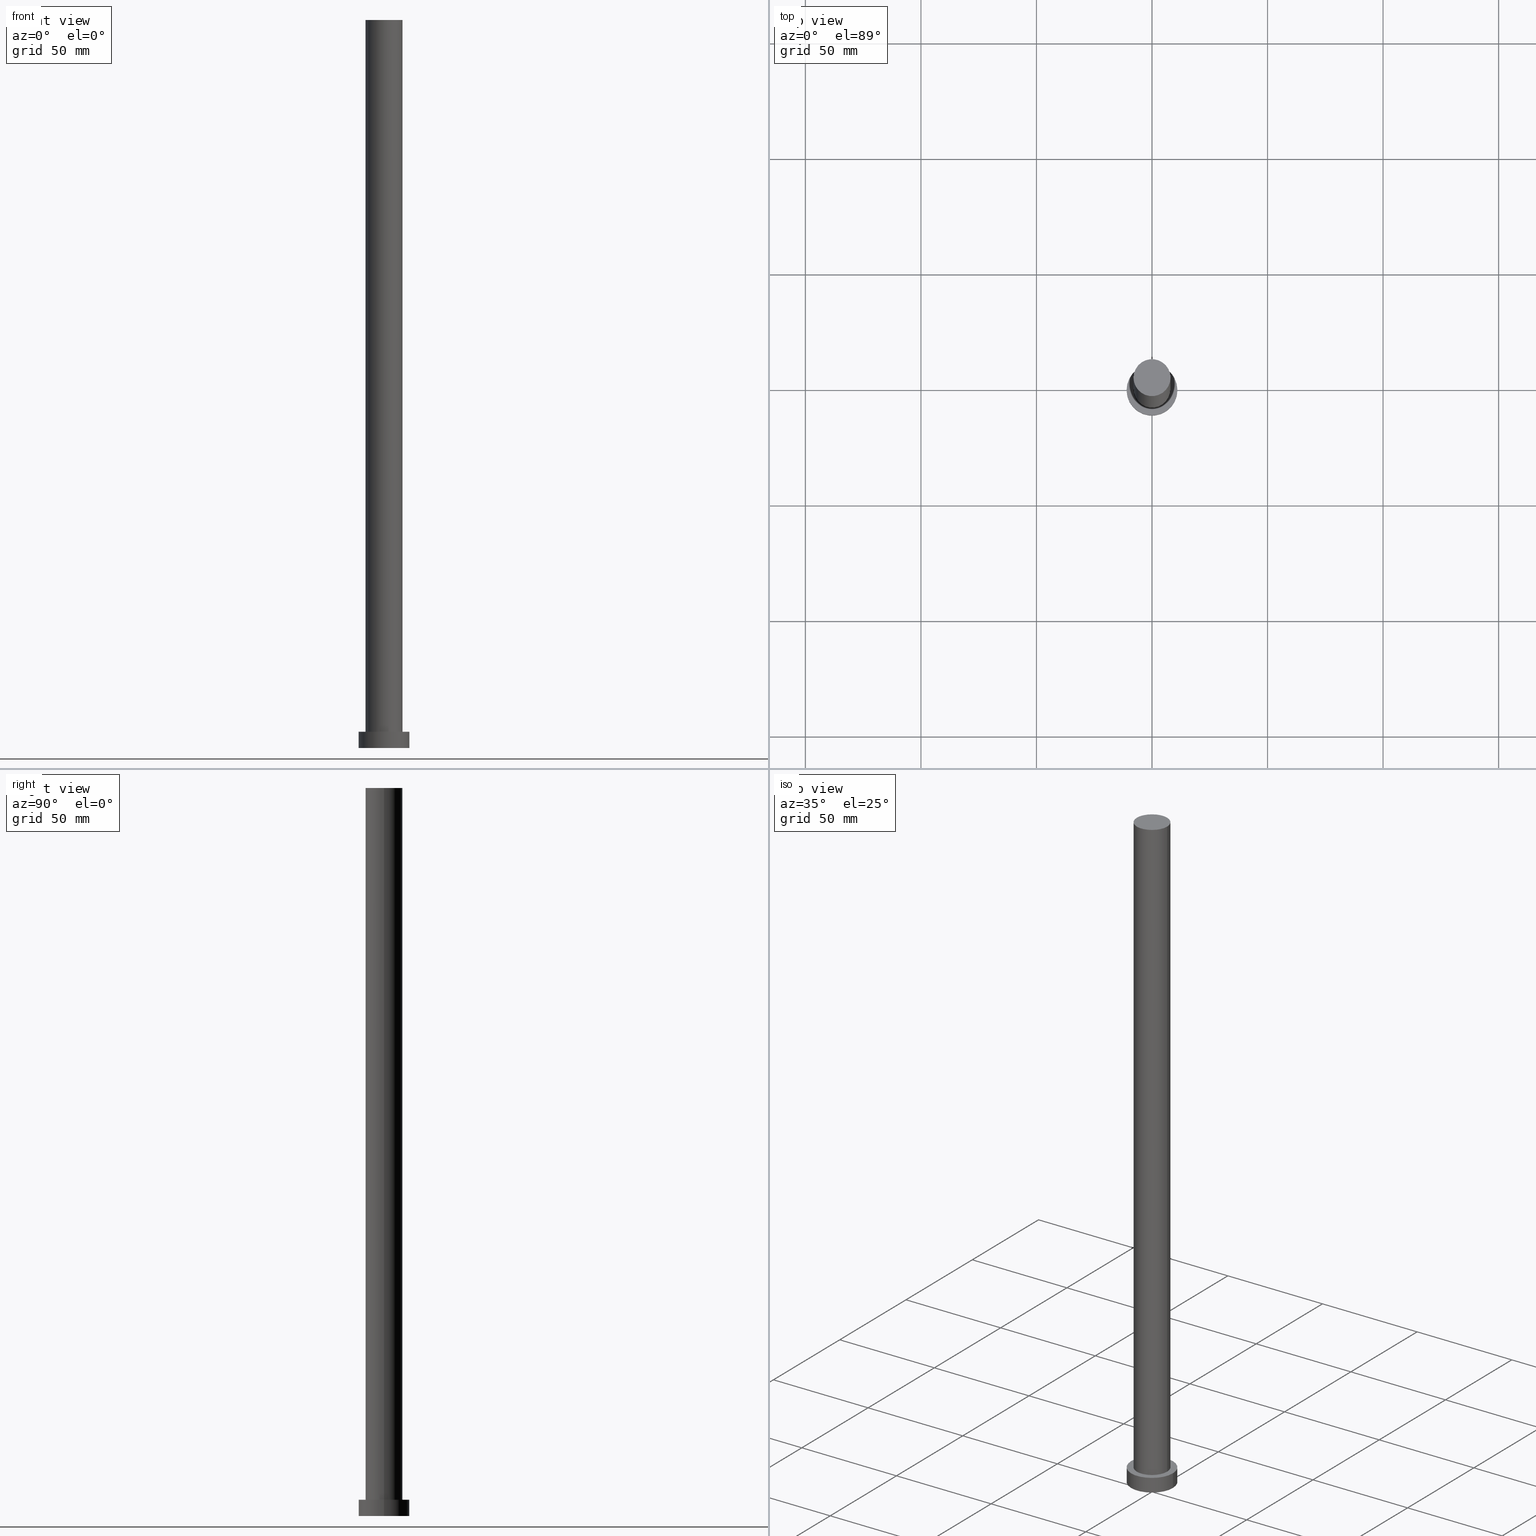
[diagram: canonical four-view strip — front | top / right | iso, engineering-drawing reading convention]
A machine part, canonical four-view strip (front | top / right | iso — engineering-drawing reading convention). The complete STEP part file that produces these views, byte-faithful:
ISO-10303-21;
HEADER;
FILE_DESCRIPTION (( 'STEP AP203' ),
    '1' );
FILE_NAME ('3391.STEP',
    '2023-02-13T08:52:32',
    ( '' ),
    ( '' ),
    'SwSTEP 2.0',
    'SolidWorks 2019',
    '' );
FILE_SCHEMA (( 'CONFIG_CONTROL_DESIGN' ));
ENDSEC;

DATA;
#1 = AXIS2_PLACEMENT_3D ( 'NONE', #9, #65, #7 ) ;
#2 = DIRECTION ( 'NONE',  ( 0.000000000000000000, 0.000000000000000000, 1.000000000000000000 ) ) ;
#3 = EDGE_CURVE ( 'NONE', #241, #58, #8, .T. ) ;
#4 = CALENDAR_DATE ( 2023, 13, 2 ) ;
#5 = ADVANCED_BREP_SHAPE_REPRESENTATION ( '3391', ( #14, #122 ), #135 ) ;
#6 = ORIENTED_EDGE ( 'NONE', *, *, #94, .F. ) ;
#7 = DIRECTION ( 'NONE',  ( 1.000000000000000000, 0.000000000000000000, 0.000000000000000000 ) ) ;
#8 = LINE ( 'NONE', #147, #207 ) ;
#9 = CARTESIAN_POINT ( 'NONE',  ( 0.000000000000000000, 0.000000000000000000, 0.000000000000000000 ) ) ;
#10 = ADVANCED_FACE ( 'NONE', ( #245 ), #59, .T. ) ;
#11 = CARTESIAN_POINT ( 'NONE',  ( 0.000000000000000000, 0.000000000000000000, 0.000000000000000000 ) ) ;
#12 = VECTOR ( 'NONE', #89, 1000.000000000000000 ) ;
#13 = CC_DESIGN_DATE_AND_TIME_ASSIGNMENT ( #218, #44, ( #100 ) ) ;
#14 = MANIFOLD_SOLID_BREP ( 'P�idat vysunut�m3', #210 ) ;
#15 = CC_DESIGN_APPROVAL ( #47, ( #27 ) ) ;
#16 = CARTESIAN_POINT ( 'NONE',  ( 11.00000000000000000, 1.347111479062088405E-15, 7.000000000000000000 ) ) ;
#17 = DIRECTION ( 'NONE',  ( 1.000000000000000000, 0.000000000000000000, 0.000000000000000000 ) ) ;
#18 = FACE_OUTER_BOUND ( 'NONE', #203, .T. ) ;
#19 = DIRECTION ( 'NONE',  ( 0.000000000000000000, 0.000000000000000000, 1.000000000000000000 ) ) ;
#20 = PERSON_AND_ORGANIZATION ( #248, #197 ) ;
#21 = AXIS2_PLACEMENT_3D ( 'NONE', #255, #19, #190 ) ;
#22 = ORIENTED_EDGE ( 'NONE', *, *, #227, .T. ) ;
#23 = DIRECTION ( 'NONE',  ( -0.000000000000000000, -0.000000000000000000, -1.000000000000000000 ) ) ;
#24 = MECHANICAL_CONTEXT ( 'NONE', #103, 'mechanical' ) ;
#25 = DIRECTION ( 'NONE',  ( 0.000000000000000000, 0.000000000000000000, 1.000000000000000000 ) ) ;
#26 = APPROVAL_PERSON_ORGANIZATION ( #20, #138, #201 ) ;
#27 = SECURITY_CLASSIFICATION ( '', '', #109 ) ;
#28 = VERTEX_POINT ( 'NONE', #45 ) ;
#29 = DIRECTION ( 'NONE',  ( -0.000000000000000000, -0.000000000000000000, -1.000000000000000000 ) ) ;
#30 =( NAMED_UNIT ( * ) PLANE_ANGLE_UNIT ( ) SI_UNIT ( $, .RADIAN. ) );
#31 = AXIS2_PLACEMENT_3D ( 'NONE', #156, #192, #17 ) ;
#32 = ADVANCED_FACE ( 'NONE', ( #145 ), #243, .T. ) ;
#33 = LINE ( 'NONE', #157, #131 ) ;
#34 = CIRCLE ( 'NONE', #223, 11.00000000000000000 ) ;
#35 = APPROVAL ( #108, 'NEUR�EN�' ) ;
#36 = DIRECTION ( 'NONE',  ( 1.000000000000000000, 0.000000000000000000, -0.000000000000000000 ) ) ;
#37 = PERSON_AND_ORGANIZATION_ROLE ( 'design_supplier' ) ;
#38 = CARTESIAN_POINT ( 'NONE',  ( 0.000000000000000000, 0.000000000000000000, 315.0000000000000000 ) ) ;
#39 = FACE_OUTER_BOUND ( 'NONE', #141, .T. ) ;
#40 = AXIS2_PLACEMENT_3D ( 'NONE', #91, #92, #229 ) ;
#41 = PERSON_AND_ORGANIZATION ( #248, #197 ) ;
#42 = PRODUCT_DEFINITION_FORMATION_WITH_SPECIFIED_SOURCE ( 'LIBOVOLN�', '', #251, .NOT_KNOWN. ) ;
#43 = EDGE_LOOP ( 'NONE', ( #183, #216 ) ) ;
#44 = DATE_TIME_ROLE ( 'creation_date' ) ;
#45 = CARTESIAN_POINT ( 'NONE',  ( 8.000000000000000000, 9.797174393178825657E-16, 315.0000000000000000 ) ) ;
#46 = ORIENTED_EDGE ( 'NONE', *, *, #214, .F. ) ;
#47 = APPROVAL ( #75, 'NEUR�EN�' ) ;
#48 = LINE ( 'NONE', #200, #53 ) ;
#49 = DIRECTION ( 'NONE',  ( 0.000000000000000000, 0.000000000000000000, 1.000000000000000000 ) ) ;
#50 = CIRCLE ( 'NONE', #244, 11.00000000000000000 ) ;
#51 = CARTESIAN_POINT ( 'NONE',  ( 0.000000000000000000, 0.000000000000000000, 0.000000000000000000 ) ) ;
#52 = EDGE_CURVE ( 'NONE', #168, #241, #50, .T. ) ;
#53 = VECTOR ( 'NONE', #23, 1000.000000000000000 ) ;
#54 = APPROVAL_ROLE ( '' ) ;
#55 = DIRECTION ( 'NONE',  ( -1.000000000000000000, 0.000000000000000000, 0.000000000000000000 ) ) ;
#56 = DIRECTION ( 'NONE',  ( 0.000000000000000000, 0.000000000000000000, 1.000000000000000000 ) ) ;
#57 = PERSON_AND_ORGANIZATION ( #248, #197 ) ;
#58 = VERTEX_POINT ( 'NONE', #165 ) ;
#59 = CYLINDRICAL_SURFACE ( 'NONE', #76, 11.00000000000000000 ) ;
#60 = EDGE_LOOP ( 'NONE', ( #46, #6 ) ) ;
#61 = CARTESIAN_POINT ( 'NONE',  ( 0.000000000000000000, 0.000000000000000000, 7.000000000000000000 ) ) ;
#62 = CC_DESIGN_PERSON_AND_ORGANIZATION_ASSIGNMENT ( #90, #231, ( #42 ) ) ;
#63 = UNCERTAINTY_MEASURE_WITH_UNIT (LENGTH_MEASURE( 1.000000000000000082E-05 ), #225, 'distance_accuracy_value', 'NONE');
#64 = CC_DESIGN_APPROVAL ( #138, ( #100 ) ) ;
#65 = DIRECTION ( 'NONE',  ( 0.000000000000000000, 0.000000000000000000, 1.000000000000000000 ) ) ;
#66 = APPLICATION_CONTEXT ( 'configuration controlled 3d designs of mechanical parts and assemblies' ) ;
#67 = DIRECTION ( 'NONE',  ( -0.000000000000000000, -0.000000000000000000, -1.000000000000000000 ) ) ;
#68 = EDGE_CURVE ( 'NONE', #28, #121, #48, .T. ) ;
#69 = PLANE ( 'NONE',  #170 ) ;
#70 = FACE_OUTER_BOUND ( 'NONE', #167, .T. ) ;
#71 = CIRCLE ( 'NONE', #31, 8.000000000000000000 ) ;
#72 = PERSON_AND_ORGANIZATION ( #248, #197 ) ;
#73 = CARTESIAN_POINT ( 'NONE',  ( -11.00000000000000000, 0.000000000000000000, 7.000000000000000000 ) ) ;
#74 = DIRECTION ( 'NONE',  ( -0.000000000000000000, -0.000000000000000000, -1.000000000000000000 ) ) ;
#75 = APPROVAL_STATUS ( 'not_yet_approved' ) ;
#76 = AXIS2_PLACEMENT_3D ( 'NONE', #61, #205, #184 ) ;
#77 = DATE_TIME_ROLE ( 'classification_date' ) ;
#78 = ORIENTED_EDGE ( 'NONE', *, *, #227, .F. ) ;
#79 = CC_DESIGN_PERSON_AND_ORGANIZATION_ASSIGNMENT ( #41, #116, ( #100 ) ) ;
#80 = ORIENTED_EDGE ( 'NONE', *, *, #3, .T. ) ;
#81 = DIRECTION ( 'NONE',  ( 1.000000000000000000, 0.000000000000000000, 0.000000000000000000 ) ) ;
#82 = AXIS2_PLACEMENT_3D ( 'NONE', #230, #67, #152 ) ;
#83 = CC_DESIGN_DATE_AND_TIME_ASSIGNMENT ( #115, #77, ( #27 ) ) ;
#84 = ORIENTED_EDGE ( 'NONE', *, *, #94, .T. ) ;
#85 = ORIENTED_EDGE ( 'NONE', *, *, #3, .F. ) ;
#86 = ORIENTED_EDGE ( 'NONE', *, *, #68, .F. ) ;
#87 = AXIS2_PLACEMENT_3D ( 'NONE', #38, #175, #55 ) ;
#88 = CC_DESIGN_APPROVAL ( #35, ( #42 ) ) ;
#89 = DIRECTION ( 'NONE',  ( -0.000000000000000000, -0.000000000000000000, -1.000000000000000000 ) ) ;
#90 = PERSON_AND_ORGANIZATION ( #248, #197 ) ;
#91 = CARTESIAN_POINT ( 'NONE',  ( 0.000000000000000000, 0.000000000000000000, 7.000000000000000000 ) ) ;
#92 = DIRECTION ( 'NONE',  ( 0.000000000000000000, 0.000000000000000000, 1.000000000000000000 ) ) ;
#93 = APPLICATION_PROTOCOL_DEFINITION ( 'international standard', 'config_control_design', 1994, #66 ) ;
#94 = EDGE_CURVE ( 'NONE', #121, #163, #111, .T. ) ;
#95 = CIRCLE ( 'NONE', #174, 8.000000000000000000 ) ;
#96 = COORDINATED_UNIVERSAL_TIME_OFFSET ( 1, 0, .AHEAD. ) ;
#97 = ORIENTED_EDGE ( 'NONE', *, *, #52, .T. ) ;
#98 = ORIENTED_EDGE ( 'NONE', *, *, #189, .F. ) ;
#99 = CARTESIAN_POINT ( 'NONE',  ( 0.000000000000000000, 0.000000000000000000, 7.000000000000000000 ) ) ;
#100 = PRODUCT_DEFINITION ( 'NEZN�M�', '', #42, #137 ) ;
#101 = VERTEX_POINT ( 'NONE', #181 ) ;
#102 = PERSON_AND_ORGANIZATION ( #248, #197 ) ;
#103 = APPLICATION_CONTEXT ( 'configuration controlled 3d designs of mechanical parts and assemblies' ) ;
#104 = DIRECTION ( 'NONE',  ( 0.000000000000000000, 0.000000000000000000, 1.000000000000000000 ) ) ;
#105 = CARTESIAN_POINT ( 'NONE',  ( 0.000000000000000000, 0.000000000000000000, 7.000000000000000000 ) ) ;
#106 =( NAMED_UNIT ( * ) SI_UNIT ( $, .STERADIAN. ) SOLID_ANGLE_UNIT ( ) );
#107 = LINE ( 'NONE', #188, #12 ) ;
#108 = APPROVAL_STATUS ( 'not_yet_approved' ) ;
#109 = SECURITY_CLASSIFICATION_LEVEL ( 'unclassified' ) ;
#110 = CARTESIAN_POINT ( 'NONE',  ( 11.00000000000000000, 1.347111479062088405E-15, 0.000000000000000000 ) ) ;
#111 = CIRCLE ( 'NONE', #194, 8.000000000000000000 ) ;
#112 = DATE_AND_TIME ( #195, #250 ) ;
#113 = EDGE_CURVE ( 'NONE', #58, #222, #240, .T. ) ;
#114 = CALENDAR_DATE ( 2023, 13, 2 ) ;
#115 = DATE_AND_TIME ( #4, #206 ) ;
#116 = PERSON_AND_ORGANIZATION_ROLE ( 'creator' ) ;
#117 = ORIENTED_EDGE ( 'NONE', *, *, #127, .F. ) ;
#118 = EDGE_CURVE ( 'NONE', #28, #101, #95, .T. ) ;
#119 = CARTESIAN_POINT ( 'NONE',  ( 0.000000000000000000, 0.000000000000000000, 7.000000000000000000 ) ) ;
#120 = ORIENTED_EDGE ( 'NONE', *, *, #68, .T. ) ;
#121 = VERTEX_POINT ( 'NONE', #173 ) ;
#122 = AXIS2_PLACEMENT_3D ( 'NONE', #11, #49, #126 ) ;
#123 = LOCAL_TIME ( 9, 52, 32.00000000000000000, #211 ) ;
#124 = CC_DESIGN_PERSON_AND_ORGANIZATION_ASSIGNMENT ( #102, #140, ( #251 ) ) ;
#125 = ORIENTED_EDGE ( 'NONE', *, *, #113, .F. ) ;
#126 = DIRECTION ( 'NONE',  ( 1.000000000000000000, 0.000000000000000000, 0.000000000000000000 ) ) ;
#127 = EDGE_CURVE ( 'NONE', #168, #222, #33, .T. ) ;
#128 = DIRECTION ( 'NONE',  ( 0.000000000000000000, 0.000000000000000000, 1.000000000000000000 ) ) ;
#129 = FACE_BOUND ( 'NONE', #60, .T. ) ;
#130 = PERSON_AND_ORGANIZATION_ROLE ( 'classification_officer' ) ;
#131 = VECTOR ( 'NONE', #74, 1000.000000000000000 ) ;
#132 = DIRECTION ( 'NONE',  ( 0.000000000000000000, 0.000000000000000000, 1.000000000000000000 ) ) ;
#133 = PLANE ( 'NONE',  #187 ) ;
#134 = DIRECTION ( 'NONE',  ( 1.000000000000000000, 0.000000000000000000, 0.000000000000000000 ) ) ;
#135 =( GEOMETRIC_REPRESENTATION_CONTEXT ( 3 ) GLOBAL_UNCERTAINTY_ASSIGNED_CONTEXT ( ( #63 ) ) GLOBAL_UNIT_ASSIGNED_CONTEXT ( ( #225, #30, #106 ) ) REPRESENTATION_CONTEXT ( 'NONE', 'WORKASPACE' ) );
#136 = APPROVAL_PERSON_ORGANIZATION ( #196, #47, #160 ) ;
#137 = DESIGN_CONTEXT ( 'detailed design', #66, 'design' ) ;
#138 = APPROVAL ( #143, 'NEUR�EN�' ) ;
#139 = SHAPE_DEFINITION_REPRESENTATION ( #151, #5 ) ;
#140 = PERSON_AND_ORGANIZATION_ROLE ( 'design_owner' ) ;
#141 = EDGE_LOOP ( 'NONE', ( #164, #120, #84, #98 ) ) ;
#142 = ORIENTED_EDGE ( 'NONE', *, *, #246, .F. ) ;
#143 = APPROVAL_STATUS ( 'not_yet_approved' ) ;
#144 = DATE_AND_TIME ( #114, #177 ) ;
#145 = FACE_OUTER_BOUND ( 'NONE', #198, .T. ) ;
#146 = ORIENTED_EDGE ( 'NONE', *, *, #52, .F. ) ;
#147 = CARTESIAN_POINT ( 'NONE',  ( -11.00000000000000000, 0.000000000000000000, 7.000000000000000000 ) ) ;
#148 = ORIENTED_EDGE ( 'NONE', *, *, #189, .T. ) ;
#149 = ADVANCED_FACE ( 'NONE', ( #129, #18 ), #69, .T. ) ;
#150 = AXIS2_PLACEMENT_3D ( 'NONE', #119, #219, #224 ) ;
#151 = PRODUCT_DEFINITION_SHAPE ( 'NONE', 'NONE',  #100 ) ;
#152 = DIRECTION ( 'NONE',  ( -1.000000000000000000, 0.000000000000000000, 0.000000000000000000 ) ) ;
#153 = PLANE ( 'NONE',  #166 ) ;
#154 = CARTESIAN_POINT ( 'NONE',  ( -8.000000000000000000, 0.000000000000000000, 7.000000000000000000 ) ) ;
#155 = LOCAL_TIME ( 9, 52, 32.00000000000000000, #199 ) ;
#156 = CARTESIAN_POINT ( 'NONE',  ( 0.000000000000000000, 0.000000000000000000, 7.000000000000000000 ) ) ;
#157 = CARTESIAN_POINT ( 'NONE',  ( 11.00000000000000000, 1.347111479062088405E-15, 7.000000000000000000 ) ) ;
#158 = DATE_AND_TIME ( #191, #123 ) ;
#159 = DIRECTION ( 'NONE',  ( 1.000000000000000000, 0.000000000000000000, -0.000000000000000000 ) ) ;
#160 = APPROVAL_ROLE ( '' ) ;
#161 = CC_DESIGN_SECURITY_CLASSIFICATION ( #27, ( #42 ) ) ;
#162 = APPROVAL_DATE_TIME ( #144, #138 ) ;
#163 = VERTEX_POINT ( 'NONE', #154 ) ;
#164 = ORIENTED_EDGE ( 'NONE', *, *, #118, .F. ) ;
#165 = CARTESIAN_POINT ( 'NONE',  ( -11.00000000000000000, 0.000000000000000000, 0.000000000000000000 ) ) ;
#166 = AXIS2_PLACEMENT_3D ( 'NONE', #209, #2, #36 ) ;
#167 = EDGE_LOOP ( 'NONE', ( #86, #237, #148, #221 ) ) ;
#168 = VERTEX_POINT ( 'NONE', #16 ) ;
#169 = ADVANCED_FACE ( 'NONE', ( #39 ), #171, .T. ) ;
#170 = AXIS2_PLACEMENT_3D ( 'NONE', #233, #56, #159 ) ;
#171 = CYLINDRICAL_SURFACE ( 'NONE', #82, 8.000000000000000000 ) ;
#172 = ADVANCED_FACE ( 'NONE', ( #228 ), #133, .F. ) ;
#173 = CARTESIAN_POINT ( 'NONE',  ( 8.000000000000000000, 9.797174393178825657E-16, 7.000000000000000000 ) ) ;
#174 = AXIS2_PLACEMENT_3D ( 'NONE', #202, #25, #253 ) ;
#175 = DIRECTION ( 'NONE',  ( -0.000000000000000000, -0.000000000000000000, -1.000000000000000000 ) ) ;
#176 = CC_DESIGN_PERSON_AND_ORGANIZATION_ASSIGNMENT ( #57, #130, ( #27 ) ) ;
#177 = LOCAL_TIME ( 9, 52, 32.00000000000000000, #242 ) ;
#178 = EDGE_LOOP ( 'NONE', ( #125, #142 ) ) ;
#179 = COORDINATED_UNIVERSAL_TIME_OFFSET ( 1, 0, .AHEAD. ) ;
#180 = ORIENTED_EDGE ( 'NONE', *, *, #127, .T. ) ;
#181 = CARTESIAN_POINT ( 'NONE',  ( -8.000000000000000000, 0.000000000000000000, 315.0000000000000000 ) ) ;
#182 = ORIENTED_EDGE ( 'NONE', *, *, #246, .T. ) ;
#183 = ORIENTED_EDGE ( 'NONE', *, *, #213, .T. ) ;
#184 = DIRECTION ( 'NONE',  ( -1.000000000000000000, 0.000000000000000000, 0.000000000000000000 ) ) ;
#185 = DIRECTION ( 'NONE',  ( 1.000000000000000000, 0.000000000000000000, 0.000000000000000000 ) ) ;
#186 = DIRECTION ( 'NONE',  ( 0.000000000000000000, 0.000000000000000000, 1.000000000000000000 ) ) ;
#187 = AXIS2_PLACEMENT_3D ( 'NONE', #51, #128, #208 ) ;
#188 = CARTESIAN_POINT ( 'NONE',  ( -8.000000000000000000, 0.000000000000000000, 315.0000000000000000 ) ) ;
#189 = EDGE_CURVE ( 'NONE', #101, #163, #107, .T. ) ;
#190 = DIRECTION ( 'NONE',  ( 1.000000000000000000, 0.000000000000000000, 0.000000000000000000 ) ) ;
#191 = CALENDAR_DATE ( 2023, 13, 2 ) ;
#192 = DIRECTION ( 'NONE',  ( 0.000000000000000000, 0.000000000000000000, 1.000000000000000000 ) ) ;
#193 = ADVANCED_FACE ( 'NONE', ( #252 ), #153, .T. ) ;
#194 = AXIS2_PLACEMENT_3D ( 'NONE', #99, #104, #185 ) ;
#195 = CALENDAR_DATE ( 2023, 13, 2 ) ;
#196 = PERSON_AND_ORGANIZATION ( #248, #197 ) ;
#197 = ORGANIZATION ( 'NEUR�EN�', 'NEUR�EN�', '' ) ;
#198 = EDGE_LOOP ( 'NONE', ( #117, #78, #80, #238 ) ) ;
#199 = COORDINATED_UNIVERSAL_TIME_OFFSET ( 1, 0, .AHEAD. ) ;
#200 = CARTESIAN_POINT ( 'NONE',  ( 8.000000000000000000, 9.797174393178825657E-16, 315.0000000000000000 ) ) ;
#201 = APPROVAL_ROLE ( '' ) ;
#202 = CARTESIAN_POINT ( 'NONE',  ( 0.000000000000000000, 0.000000000000000000, 315.0000000000000000 ) ) ;
#203 = EDGE_LOOP ( 'NONE', ( #22, #97 ) ) ;
#204 = CIRCLE ( 'NONE', #40, 11.00000000000000000 ) ;
#205 = DIRECTION ( 'NONE',  ( -0.000000000000000000, -0.000000000000000000, -1.000000000000000000 ) ) ;
#206 = LOCAL_TIME ( 9, 52, 32.00000000000000000, #96 ) ;
#207 = VECTOR ( 'NONE', #29, 1000.000000000000000 ) ;
#208 = DIRECTION ( 'NONE',  ( 1.000000000000000000, 0.000000000000000000, -0.000000000000000000 ) ) ;
#209 = CARTESIAN_POINT ( 'NONE',  ( 0.000000000000000000, 0.000000000000000000, 315.0000000000000000 ) ) ;
#210 = CLOSED_SHELL ( 'NONE', ( #169, #10, #32, #149, #172, #239, #193 ) ) ;
#211 = COORDINATED_UNIVERSAL_TIME_OFFSET ( 1, 0, .AHEAD. ) ;
#212 = CYLINDRICAL_SURFACE ( 'NONE', #87, 8.000000000000000000 ) ;
#213 = EDGE_CURVE ( 'NONE', #101, #28, #226, .T. ) ;
#214 = EDGE_CURVE ( 'NONE', #163, #121, #71, .T. ) ;
#215 = EDGE_LOOP ( 'NONE', ( #146, #180, #182, #85 ) ) ;
#216 = ORIENTED_EDGE ( 'NONE', *, *, #118, .T. ) ;
#217 = CALENDAR_DATE ( 2023, 13, 2 ) ;
#218 = DATE_AND_TIME ( #217, #155 ) ;
#219 = DIRECTION ( 'NONE',  ( -0.000000000000000000, -0.000000000000000000, -1.000000000000000000 ) ) ;
#220 = CC_DESIGN_PERSON_AND_ORGANIZATION_ASSIGNMENT ( #234, #37, ( #42 ) ) ;
#221 = ORIENTED_EDGE ( 'NONE', *, *, #214, .T. ) ;
#222 = VERTEX_POINT ( 'NONE', #110 ) ;
#223 = AXIS2_PLACEMENT_3D ( 'NONE', #232, #132, #134 ) ;
#224 = DIRECTION ( 'NONE',  ( -1.000000000000000000, 0.000000000000000000, 0.000000000000000000 ) ) ;
#225 =( LENGTH_UNIT ( ) NAMED_UNIT ( * ) SI_UNIT ( .MILLI., .METRE. ) );
#226 = CIRCLE ( 'NONE', #21, 8.000000000000000000 ) ;
#227 = EDGE_CURVE ( 'NONE', #241, #168, #204, .T. ) ;
#228 = FACE_OUTER_BOUND ( 'NONE', #178, .T. ) ;
#229 = DIRECTION ( 'NONE',  ( 1.000000000000000000, 0.000000000000000000, 0.000000000000000000 ) ) ;
#230 = CARTESIAN_POINT ( 'NONE',  ( 0.000000000000000000, 0.000000000000000000, 315.0000000000000000 ) ) ;
#231 = PERSON_AND_ORGANIZATION_ROLE ( 'creator' ) ;
#232 = CARTESIAN_POINT ( 'NONE',  ( 0.000000000000000000, 0.000000000000000000, 0.000000000000000000 ) ) ;
#233 = CARTESIAN_POINT ( 'NONE',  ( 0.000000000000000000, 0.000000000000000000, 7.000000000000000000 ) ) ;
#234 = PERSON_AND_ORGANIZATION ( #248, #197 ) ;
#235 = APPROVAL_DATE_TIME ( #112, #47 ) ;
#236 = APPROVAL_PERSON_ORGANIZATION ( #72, #35, #54 ) ;
#237 = ORIENTED_EDGE ( 'NONE', *, *, #213, .F. ) ;
#238 = ORIENTED_EDGE ( 'NONE', *, *, #113, .T. ) ;
#239 = ADVANCED_FACE ( 'NONE', ( #70 ), #212, .T. ) ;
#240 = CIRCLE ( 'NONE', #1, 11.00000000000000000 ) ;
#241 = VERTEX_POINT ( 'NONE', #73 ) ;
#242 = COORDINATED_UNIVERSAL_TIME_OFFSET ( 1, 0, .AHEAD. ) ;
#243 = CYLINDRICAL_SURFACE ( 'NONE', #150, 11.00000000000000000 ) ;
#244 = AXIS2_PLACEMENT_3D ( 'NONE', #105, #186, #81 ) ;
#245 = FACE_OUTER_BOUND ( 'NONE', #215, .T. ) ;
#246 = EDGE_CURVE ( 'NONE', #222, #58, #34, .T. ) ;
#247 = APPLICATION_PROTOCOL_DEFINITION ( 'international standard', 'config_control_design', 1994, #103 ) ;
#248 = PERSON ( 'NEUR�EN�', 'NEUR�EN�', 'NEUR�EN�', ('NEUR�EN�'), ('NEUR�EN�'), ('NEUR�EN�') ) ;
#249 = PRODUCT_RELATED_PRODUCT_CATEGORY ( 'detail', '', ( #251 ) ) ;
#250 = LOCAL_TIME ( 9, 52, 32.00000000000000000, #179 ) ;
#251 = PRODUCT ( '3391', '3391', '', ( #24 ) ) ;
#252 = FACE_OUTER_BOUND ( 'NONE', #43, .T. ) ;
#253 = DIRECTION ( 'NONE',  ( 1.000000000000000000, 0.000000000000000000, 0.000000000000000000 ) ) ;
#254 = APPROVAL_DATE_TIME ( #158, #35 ) ;
#255 = CARTESIAN_POINT ( 'NONE',  ( 0.000000000000000000, 0.000000000000000000, 315.0000000000000000 ) ) ;
ENDSEC;
END-ISO-10303-21;
